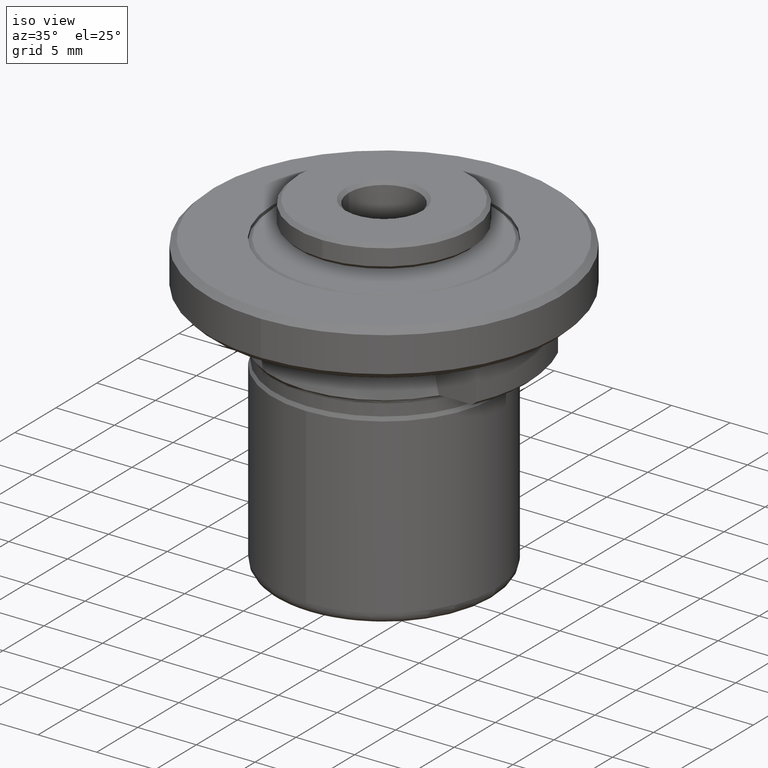
[diagram: clean part render]
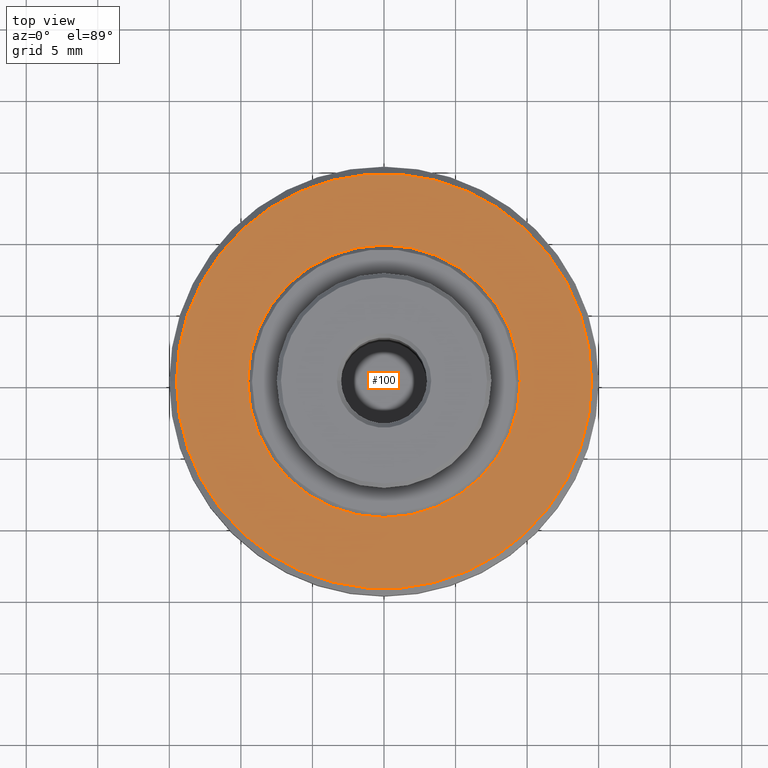
[diagram: tour spotlight — one face highlighted and labeled with its STEP entity id]
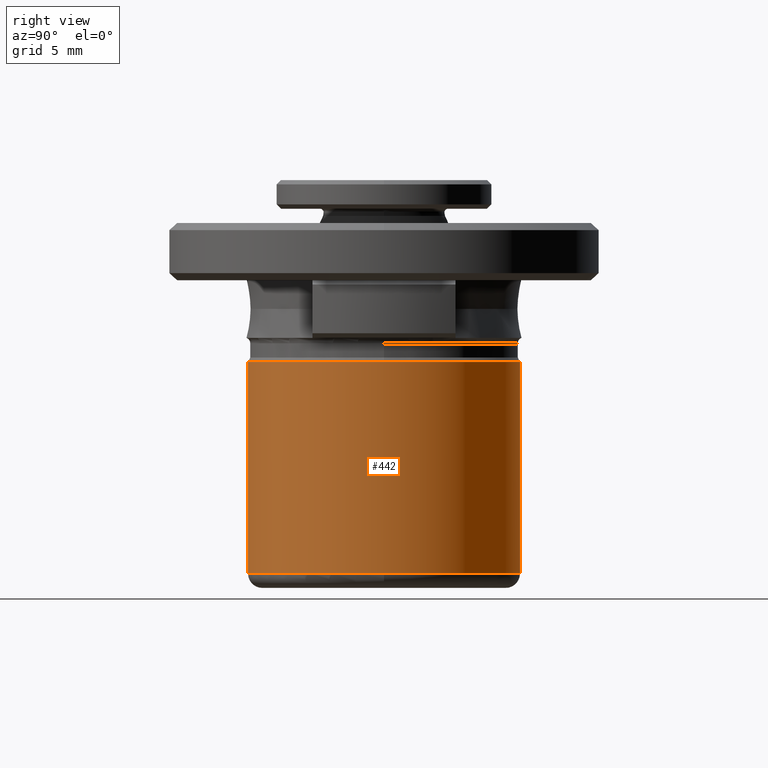
[diagram: tour spotlight — one face highlighted and labeled with its STEP entity id]
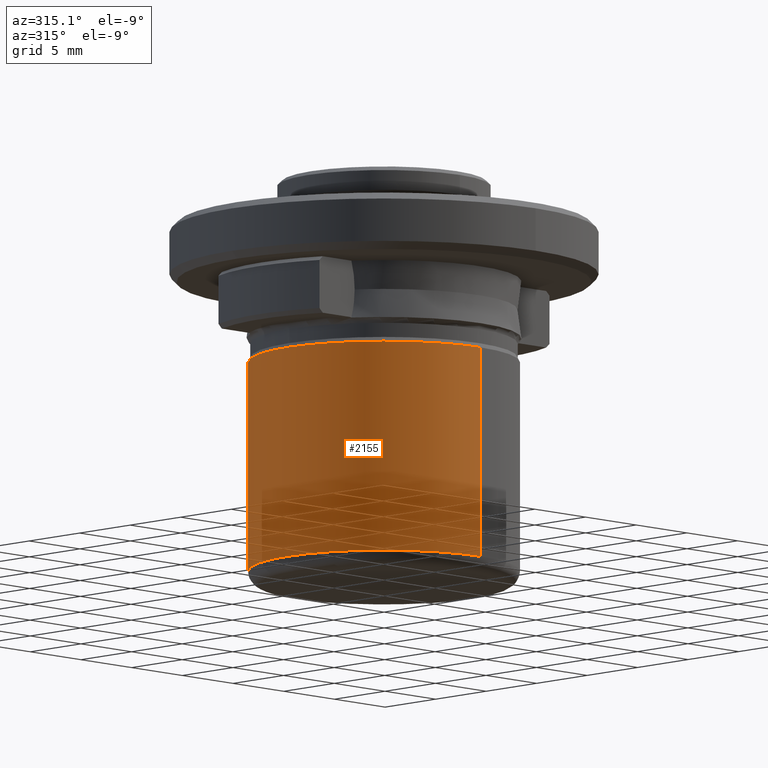
[diagram: tour spotlight — one face highlighted and labeled with its STEP entity id]
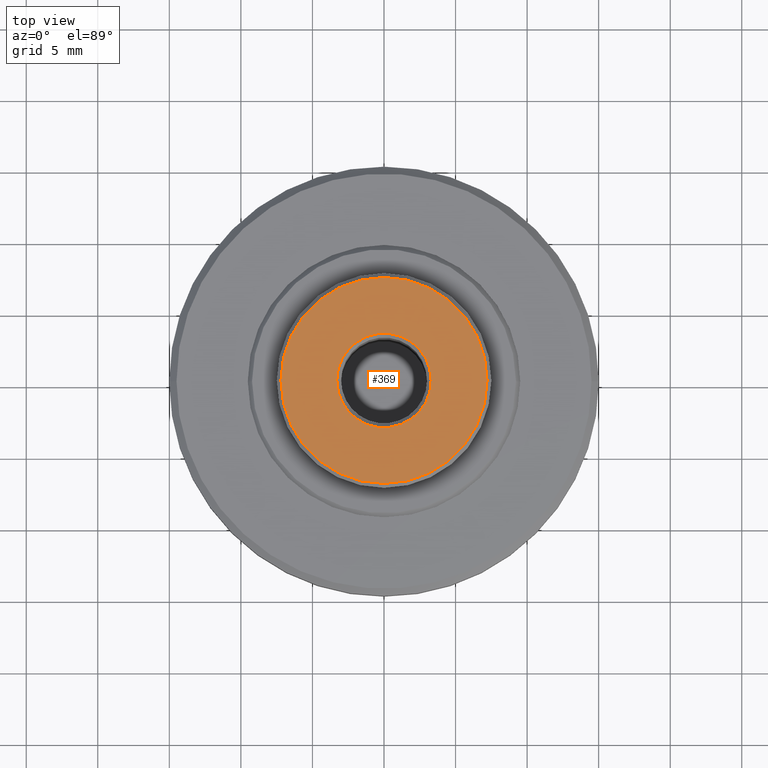
[diagram: tour spotlight — one face highlighted and labeled with its STEP entity id]
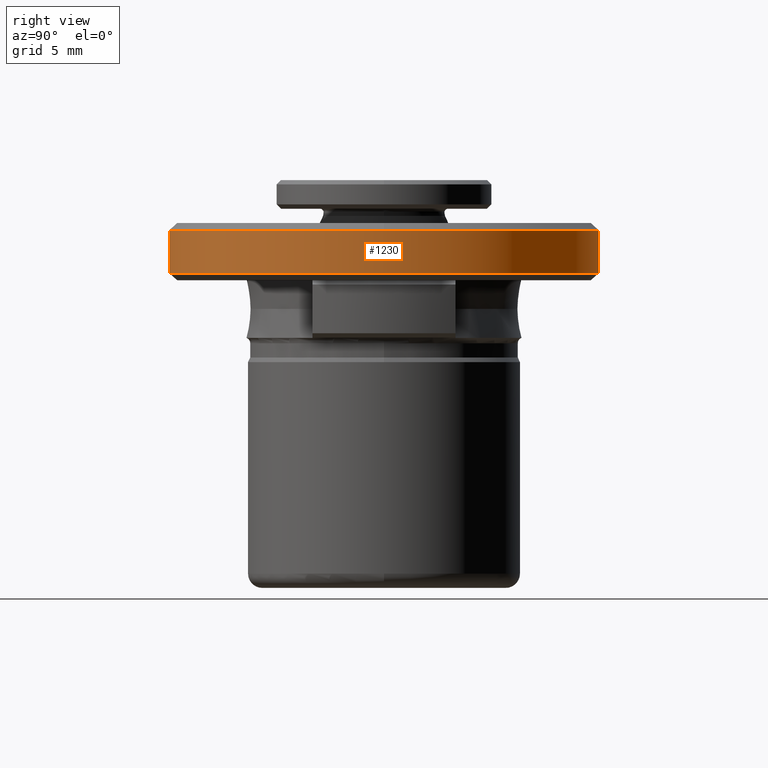
[diagram: tour spotlight — one face highlighted and labeled with its STEP entity id]
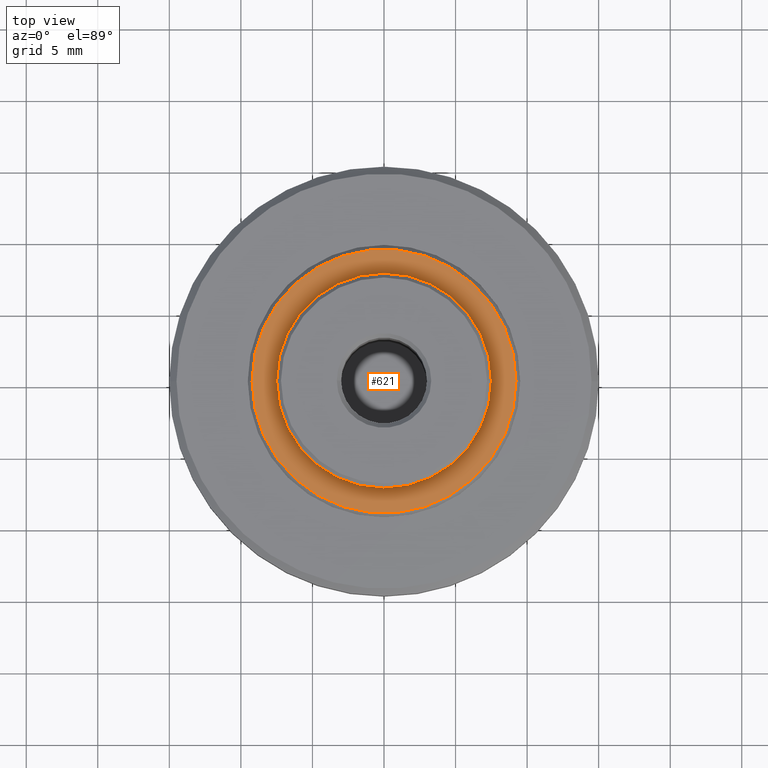
[diagram: tour spotlight — one face highlighted and labeled with its STEP entity id]
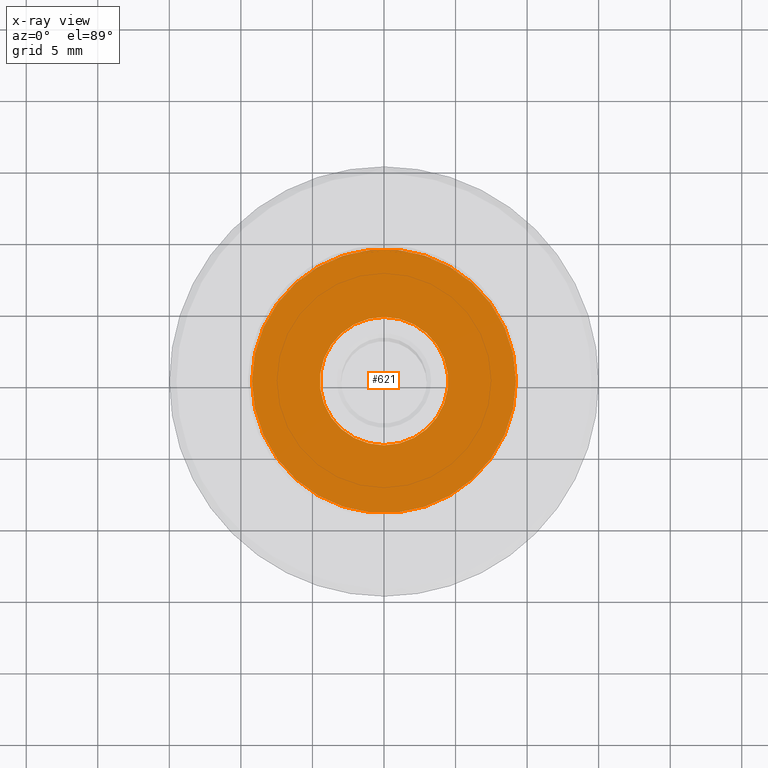
[diagram: x-ray of the same camera — body ghosted, this tour face saturated]
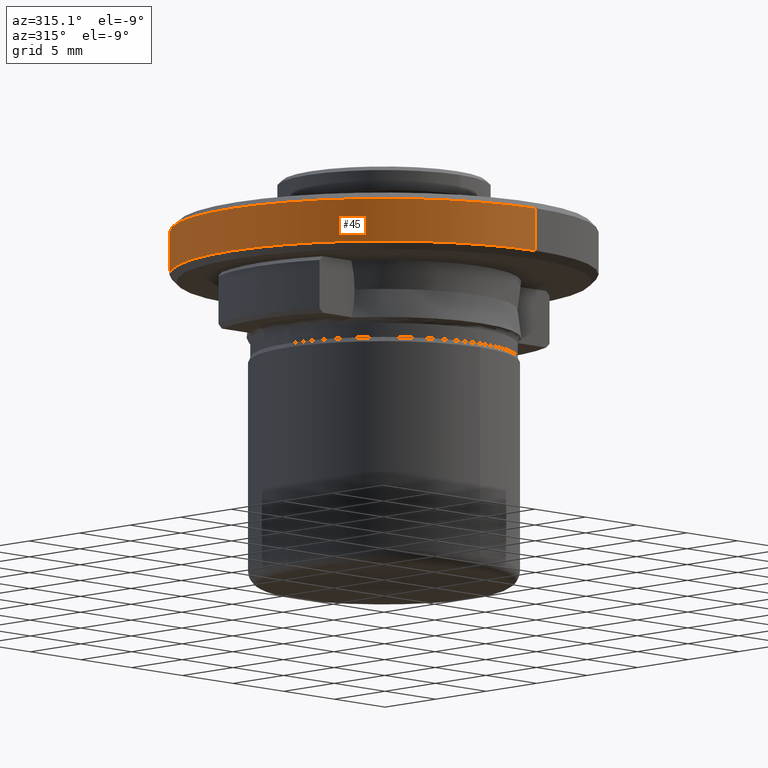
[diagram: tour spotlight — one face highlighted and labeled with its STEP entity id]
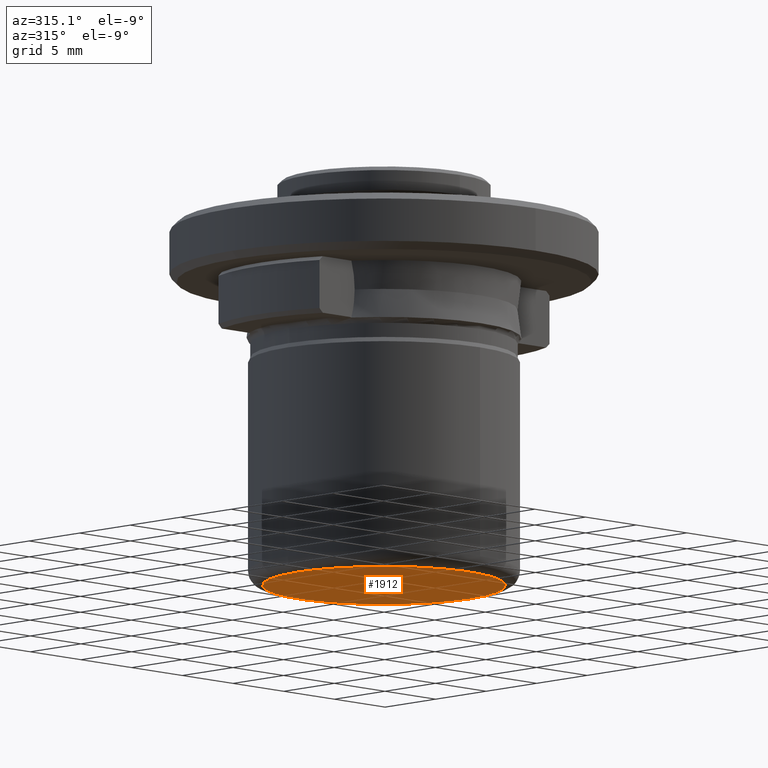
[diagram: tour spotlight — one face highlighted and labeled with its STEP entity id]
A machine part: a face-by-face anatomy tour. The part has 61 B-rep faces; the first image is the clean iso view, then the 8 largest visible faces are spotlighted one at a time (largest first), each with its STEP entity span.

Face 1 — top view, entity #100. In plain terms, the highlighted planar face has unit normal (0, 0, -1).
Definition (entity closure, byte-faithful):
#9 = VERTEX_POINT ( 'NONE', #1789 ) ;
#29 = CARTESIAN_POINT ( 'NONE',  ( 14.67399999999999900, -14.67399999999999900, 12.75000000000000200 ) ) ;
#60 = CIRCLE ( 'NONE', #265, 9.519999999999999600 ) ;
#100 = ADVANCED_FACE ( 'NONE', ( #2176, #884 ), #1372, .F. ) ;
#177 = VERTEX_POINT ( 'NONE', #1642 ) ;
#180 = CARTESIAN_POINT ( 'NONE',  ( 0.0000000000000000000, 0.0000000000000000000, 12.75000000000000200 ) ) ;
#197 = EDGE_CURVE ( 'NONE', #9, #1185, #657, .T. ) ;
#265 = AXIS2_PLACEMENT_3D ( 'NONE', #798, #1976, #965 ) ;
#312 = VERTEX_POINT ( 'NONE', #993 ) ;
#482 = DIRECTION ( 'NONE',  ( -0.0000000000000000000, -0.0000000000000000000, 1.000000000000000000 ) ) ;
#517 = CARTESIAN_POINT ( 'NONE',  ( 0.0000000000000000000, 0.0000000000000000000, 12.75000000000003900 ) ) ;
#626 = DIRECTION ( 'NONE',  ( -0.0000000000000000000, -0.0000000000000000000, 1.000000000000000000 ) ) ;
#657 = CIRCLE ( 'NONE', #1717, 9.519999999999999600 ) ;
#711 = DIRECTION ( 'NONE',  ( -1.000000000000000000, 0.0000000000000000000, 0.0000000000000000000 ) ) ;
#731 = DIRECTION ( 'NONE',  ( -1.000000000000000000, 0.0000000000000000000, 0.0000000000000000000 ) ) ;
#746 = DIRECTION ( 'NONE',  ( -1.000000000000000000, 0.0000000000000000000, 0.0000000000000000000 ) ) ;
#798 = CARTESIAN_POINT ( 'NONE',  ( 0.0000000000000000000, 0.0000000000000000000, 12.75000000000000200 ) ) ;
#884 = FACE_OUTER_BOUND ( 'NONE', #1469, .T. ) ;
#929 = AXIS2_PLACEMENT_3D ( 'NONE', #29, #1759, #746 ) ;
#965 = DIRECTION ( 'NONE',  ( -1.000000000000000000, 0.0000000000000000000, 0.0000000000000000000 ) ) ;
#993 = CARTESIAN_POINT ( 'NONE',  ( -14.49999999999996300, 0.0000000000000000000, 12.75000000000003900 ) ) ;
#1068 = CIRCLE ( 'NONE', #2168, 14.49999999999996300 ) ;
#1093 = AXIS2_PLACEMENT_3D ( 'NONE', #517, #1725, #711 ) ;
#1150 = CIRCLE ( 'NONE', #1093, 14.49999999999996300 ) ;
#1185 = VERTEX_POINT ( 'NONE', #1615 ) ;
#1187 = EDGE_CURVE ( 'NONE', #1185, #9, #60, .T. ) ;
#1218 = ORIENTED_EDGE ( 'NONE', *, *, #197, .F. ) ;
#1232 = ORIENTED_EDGE ( 'NONE', *, *, #1187, .F. ) ;
#1372 = PLANE ( 'NONE',  #929 ) ;
#1469 = EDGE_LOOP ( 'NONE', ( #2028, #2029 ) ) ;
#1523 = CARTESIAN_POINT ( 'NONE',  ( 0.0000000000000000000, 0.0000000000000000000, 12.75000000000003900 ) ) ;
#1615 = CARTESIAN_POINT ( 'NONE',  ( 9.519999999999999600, 1.165863752788280200E-015, 12.75000000000000200 ) ) ;
#1642 = CARTESIAN_POINT ( 'NONE',  ( 14.49999999999996300, 1.806354028742343400E-015, 12.75000000000003900 ) ) ;
#1691 = DIRECTION ( 'NONE',  ( -1.000000000000000000, 0.0000000000000000000, 0.0000000000000000000 ) ) ;
#1717 = AXIS2_PLACEMENT_3D ( 'NONE', #180, #626, #731 ) ;
#1725 = DIRECTION ( 'NONE',  ( -0.0000000000000000000, -0.0000000000000000000, 1.000000000000000000 ) ) ;
#1746 = EDGE_CURVE ( 'NONE', #312, #177, #1150, .T. ) ;
#1759 = DIRECTION ( 'NONE',  ( 0.0000000000000000000, 0.0000000000000000000, -1.000000000000000000 ) ) ;
#1789 = CARTESIAN_POINT ( 'NONE',  ( -9.519999999999999600, 0.0000000000000000000, 12.75000000000000200 ) ) ;
#1951 = EDGE_LOOP ( 'NONE', ( #1218, #1232 ) ) ;
#1976 = DIRECTION ( 'NONE',  ( -0.0000000000000000000, -0.0000000000000000000, 1.000000000000000000 ) ) ;
#2028 = ORIENTED_EDGE ( 'NONE', *, *, #1746, .T. ) ;
#2029 = ORIENTED_EDGE ( 'NONE', *, *, #2142, .T. ) ;
#2142 = EDGE_CURVE ( 'NONE', #177, #312, #1068, .T. ) ;
#2168 = AXIS2_PLACEMENT_3D ( 'NONE', #1523, #482, #1691 ) ;
#2176 = FACE_BOUND ( 'NONE', #1951, .T. ) ;

Face 2 — right view, entity #442. In plain terms, the highlighted cylindrical surface (partial cylindrical patch) has radius 9.5 mm, axis along (0, -0, 1).
Definition (entity closure, byte-faithful):
#6 = CARTESIAN_POINT ( 'NONE',  ( 0.0000000000000000000, -9.500000000000000000, -11.75000000000000000 ) ) ;
#53 = CARTESIAN_POINT ( 'NONE',  ( 0.0000000000000000000, 2.364620801796248300E-016, -11.75000000000000000 ) ) ;
#64 = AXIS2_PLACEMENT_3D ( 'NONE', #855, #2087, #2052 ) ;
#108 = CARTESIAN_POINT ( 'NONE',  ( 1.163414459189985500E-015, 9.500000000000000000, 3.030000000000088200 ) ) ;
#118 = CARTESIAN_POINT ( 'NONE',  ( 0.0000000000000000000, -9.500000000000000000, -6.570177872000000400 ) ) ;
#136 = AXIS2_PLACEMENT_3D ( 'NONE', #577, #1849, #797 ) ;
#148 = VERTEX_POINT ( 'NONE', #586 ) ;
#167 = VERTEX_POINT ( 'NONE', #1067 ) ;
#187 = EDGE_CURVE ( 'NONE', #1744, #148, #2125, .T. ) ;
#215 = DIRECTION ( 'NONE',  ( 1.000000000000000000, 0.0000000000000000000, 0.0000000000000000000 ) ) ;
#216 = AXIS2_PLACEMENT_3D ( 'NONE', #53, #1261, #215 ) ;
#253 = VERTEX_POINT ( 'NONE', #108 ) ;
#262 = EDGE_CURVE ( 'NONE', #253, #167, #1623, .T. ) ;
#273 = VERTEX_POINT ( 'NONE', #1813 ) ;
#339 = VECTOR ( 'NONE', #2208, 1000.000000000000000 ) ;
#368 = CYLINDRICAL_SURFACE ( 'NONE', #136, 9.500000000000000000 ) ;
#442 = ADVANCED_FACE ( 'NONE', ( #2149 ), #368, .T. ) ;
#489 = CARTESIAN_POINT ( 'NONE',  ( 1.163414459189985500E-015, 9.500000000000000000, -6.570177872000000400 ) ) ;
#508 = CIRCLE ( 'NONE', #1017, 9.500000000000000000 ) ;
#534 = EDGE_CURVE ( 'NONE', #167, #148, #1194, .T. ) ;
#577 = CARTESIAN_POINT ( 'NONE',  ( 0.0000000000000000000, 0.0000000000000000000, -6.570177872000000400 ) ) ;
#586 = CARTESIAN_POINT ( 'NONE',  ( 0.0000000000000000000, -9.500000000000000000, 3.030000000000088200 ) ) ;
#587 = ORIENTED_EDGE ( 'NONE', *, *, #262, .T. ) ;
#597 = AXIS2_PLACEMENT_3D ( 'NONE', #1801, #786, #1968 ) ;
#608 = ORIENTED_EDGE ( 'NONE', *, *, #1014, .T. ) ;
#609 = ORIENTED_EDGE ( 'NONE', *, *, #1889, .T. ) ;
#622 = ORIENTED_EDGE ( 'NONE', *, *, #784, .T. ) ;
#628 = ORIENTED_EDGE ( 'NONE', *, *, #534, .T. ) ;
#679 = CARTESIAN_POINT ( 'NONE',  ( 1.163414459189985500E-015, 9.500000000000000000, -11.75000000000000000 ) ) ;
#724 = VECTOR ( 'NONE', #1737, 1000.000000000000000 ) ;
#784 = EDGE_CURVE ( 'NONE', #1442, #253, #1711, .T. ) ;
#786 = DIRECTION ( 'NONE',  ( 0.0000000000000000000, 0.0000000000000000000, -1.000000000000000000 ) ) ;
#797 = DIRECTION ( 'NONE',  ( 0.0000000000000000000, -1.000000000000000000, 0.0000000000000000000 ) ) ;
#855 = CARTESIAN_POINT ( 'NONE',  ( 0.0000000000000000000, 0.0000000000000000000, 3.030000000000088200 ) ) ;
#943 = CARTESIAN_POINT ( 'NONE',  ( 0.0000000000000000000, 2.364620801796248300E-016, -11.75000000000000000 ) ) ;
#1014 = EDGE_CURVE ( 'NONE', #1744, #273, #508, .T. ) ;
#1017 = AXIS2_PLACEMENT_3D ( 'NONE', #943, #2119, #1117 ) ;
#1023 = ORIENTED_EDGE ( 'NONE', *, *, #187, .F. ) ;
#1067 = CARTESIAN_POINT ( 'NONE',  ( 9.499999999999957400, 1.163414459189980600E-015, 3.030000000000088200 ) ) ;
#1117 = DIRECTION ( 'NONE',  ( 1.000000000000000000, 0.0000000000000000000, 0.0000000000000000000 ) ) ;
#1194 = CIRCLE ( 'NONE', #597, 9.500000000000000000 ) ;
#1261 = DIRECTION ( 'NONE',  ( 0.0000000000000000000, 0.0000000000000000000, 1.000000000000000000 ) ) ;
#1377 = CIRCLE ( 'NONE', #216, 9.500000000000000000 ) ;
#1442 = VERTEX_POINT ( 'NONE', #679 ) ;
#1623 = CIRCLE ( 'NONE', #64, 9.500000000000000000 ) ;
#1711 = LINE ( 'NONE', #489, #339 ) ;
#1737 = DIRECTION ( 'NONE',  ( 0.0000000000000000000, -4.565061778886334800E-017, 1.000000000000000000 ) ) ;
#1744 = VERTEX_POINT ( 'NONE', #6 ) ;
#1801 = CARTESIAN_POINT ( 'NONE',  ( 0.0000000000000000000, 0.0000000000000000000, 3.030000000000088200 ) ) ;
#1813 = CARTESIAN_POINT ( 'NONE',  ( 9.500000000000001800, 2.364620801796248300E-016, -11.75000000000000000 ) ) ;
#1849 = DIRECTION ( 'NONE',  ( 0.0000000000000000000, -4.565061778886334800E-017, 1.000000000000000000 ) ) ;
#1889 = EDGE_CURVE ( 'NONE', #273, #1442, #1377, .T. ) ;
#1941 = EDGE_LOOP ( 'NONE', ( #608, #609, #622, #587, #628, #1023 ) ) ;
#1968 = DIRECTION ( 'NONE',  ( -1.000000000000000000, 0.0000000000000000000, -9.312726028928122700E-015 ) ) ;
#2052 = DIRECTION ( 'NONE',  ( -1.000000000000000000, 0.0000000000000000000, -9.312726028928122700E-015 ) ) ;
#2087 = DIRECTION ( 'NONE',  ( 0.0000000000000000000, 0.0000000000000000000, -1.000000000000000000 ) ) ;
#2119 = DIRECTION ( 'NONE',  ( 0.0000000000000000000, 0.0000000000000000000, 1.000000000000000000 ) ) ;
#2125 = LINE ( 'NONE', #118, #724 ) ;
#2149 = FACE_OUTER_BOUND ( 'NONE', #1941, .T. ) ;
#2208 = DIRECTION ( 'NONE',  ( 0.0000000000000000000, -4.565061778886334800E-017, 1.000000000000000000 ) ) ;

Face 3 — auxiliary view, entity #2155. In plain terms, the highlighted cylindrical surface (partial cylindrical patch) has radius 9.5 mm, axis along (0, -0, 1).
Definition (entity closure, byte-faithful):
#4 = CARTESIAN_POINT ( 'NONE',  ( 0.0000000000000000000, 2.364620801796248300E-016, -11.75000000000000000 ) ) ;
#6 = CARTESIAN_POINT ( 'NONE',  ( 0.0000000000000000000, -9.500000000000000000, -11.75000000000000000 ) ) ;
#108 = CARTESIAN_POINT ( 'NONE',  ( 1.163414459189985500E-015, 9.500000000000000000, 3.030000000000088200 ) ) ;
#118 = CARTESIAN_POINT ( 'NONE',  ( 0.0000000000000000000, -9.500000000000000000, -6.570177872000000400 ) ) ;
#148 = VERTEX_POINT ( 'NONE', #586 ) ;
#173 = DIRECTION ( 'NONE',  ( 1.000000000000000000, 0.0000000000000000000, 0.0000000000000000000 ) ) ;
#187 = EDGE_CURVE ( 'NONE', #1744, #148, #2125, .T. ) ;
#253 = VERTEX_POINT ( 'NONE', #108 ) ;
#339 = VECTOR ( 'NONE', #2208, 1000.000000000000000 ) ;
#377 = CIRCLE ( 'NONE', #694, 9.500000000000000000 ) ;
#403 = AXIS2_PLACEMENT_3D ( 'NONE', #668, #1863, #1855 ) ;
#468 = VERTEX_POINT ( 'NONE', #1953 ) ;
#489 = CARTESIAN_POINT ( 'NONE',  ( 1.163414459189985500E-015, 9.500000000000000000, -6.570177872000000400 ) ) ;
#532 = CYLINDRICAL_SURFACE ( 'NONE', #403, 9.500000000000000000 ) ;
#586 = CARTESIAN_POINT ( 'NONE',  ( 0.0000000000000000000, -9.500000000000000000, 3.030000000000088200 ) ) ;
#645 = AXIS2_PLACEMENT_3D ( 'NONE', #1890, #876, #2059 ) ;
#648 = CIRCLE ( 'NONE', #1719, 9.500000000000000000 ) ;
#651 = CARTESIAN_POINT ( 'NONE',  ( 0.0000000000000000000, 0.0000000000000000000, 3.030000000000088200 ) ) ;
#668 = CARTESIAN_POINT ( 'NONE',  ( 0.0000000000000000000, 0.0000000000000000000, -6.570177872000000400 ) ) ;
#679 = CARTESIAN_POINT ( 'NONE',  ( 1.163414459189985500E-015, 9.500000000000000000, -11.75000000000000000 ) ) ;
#691 = AXIS2_PLACEMENT_3D ( 'NONE', #1779, #764, #1945 ) ;
#694 = AXIS2_PLACEMENT_3D ( 'NONE', #4, #1221, #173 ) ;
#705 = ORIENTED_EDGE ( 'NONE', *, *, #1736, .T. ) ;
#724 = VECTOR ( 'NONE', #1737, 1000.000000000000000 ) ;
#747 = CIRCLE ( 'NONE', #645, 9.500000000000000000 ) ;
#764 = DIRECTION ( 'NONE',  ( 0.0000000000000000000, 0.0000000000000000000, -1.000000000000000000 ) ) ;
#784 = EDGE_CURVE ( 'NONE', #1442, #253, #1711, .T. ) ;
#836 = DIRECTION ( 'NONE',  ( -1.000000000000000000, 0.0000000000000000000, -9.312726028928122700E-015 ) ) ;
#876 = DIRECTION ( 'NONE',  ( 0.0000000000000000000, 0.0000000000000000000, 1.000000000000000000 ) ) ;
#947 = VERTEX_POINT ( 'NONE', #1071 ) ;
#1071 = CARTESIAN_POINT ( 'NONE',  ( -9.500000000000001800, 1.399876539369610000E-015, -11.75000000000000000 ) ) ;
#1102 = EDGE_LOOP ( 'NONE', ( #1152, #705, #1143, #1520, #1763, #1263 ) ) ;
#1124 = FACE_OUTER_BOUND ( 'NONE', #1102, .T. ) ;
#1143 = ORIENTED_EDGE ( 'NONE', *, *, #1516, .T. ) ;
#1152 = ORIENTED_EDGE ( 'NONE', *, *, #784, .F. ) ;
#1221 = DIRECTION ( 'NONE',  ( 0.0000000000000000000, 0.0000000000000000000, 1.000000000000000000 ) ) ;
#1263 = ORIENTED_EDGE ( 'NONE', *, *, #1918, .T. ) ;
#1442 = VERTEX_POINT ( 'NONE', #679 ) ;
#1516 = EDGE_CURVE ( 'NONE', #947, #1744, #377, .T. ) ;
#1520 = ORIENTED_EDGE ( 'NONE', *, *, #187, .T. ) ;
#1711 = LINE ( 'NONE', #489, #339 ) ;
#1719 = AXIS2_PLACEMENT_3D ( 'NONE', #651, #1848, #836 ) ;
#1736 = EDGE_CURVE ( 'NONE', #1442, #947, #747, .T. ) ;
#1737 = DIRECTION ( 'NONE',  ( 0.0000000000000000000, -4.565061778886334800E-017, 1.000000000000000000 ) ) ;
#1744 = VERTEX_POINT ( 'NONE', #6 ) ;
#1763 = ORIENTED_EDGE ( 'NONE', *, *, #2083, .T. ) ;
#1779 = CARTESIAN_POINT ( 'NONE',  ( 0.0000000000000000000, 0.0000000000000000000, 3.030000000000088200 ) ) ;
#1780 = CIRCLE ( 'NONE', #691, 9.500000000000000000 ) ;
#1848 = DIRECTION ( 'NONE',  ( 0.0000000000000000000, 0.0000000000000000000, -1.000000000000000000 ) ) ;
#1855 = DIRECTION ( 'NONE',  ( 0.0000000000000000000, -1.000000000000000000, 0.0000000000000000000 ) ) ;
#1863 = DIRECTION ( 'NONE',  ( 0.0000000000000000000, -4.565061778886334800E-017, 1.000000000000000000 ) ) ;
#1890 = CARTESIAN_POINT ( 'NONE',  ( 0.0000000000000000000, 2.364620801796248300E-016, -11.75000000000000000 ) ) ;
#1918 = EDGE_CURVE ( 'NONE', #468, #253, #1780, .T. ) ;
#1945 = DIRECTION ( 'NONE',  ( -1.000000000000000000, 0.0000000000000000000, -9.312726028928122700E-015 ) ) ;
#1953 = CARTESIAN_POINT ( 'NONE',  ( -9.499999999999957400, 0.0000000000000000000, 3.030000000000088200 ) ) ;
#2059 = DIRECTION ( 'NONE',  ( 1.000000000000000000, 0.0000000000000000000, 0.0000000000000000000 ) ) ;
#2083 = EDGE_CURVE ( 'NONE', #148, #468, #648, .T. ) ;
#2125 = LINE ( 'NONE', #118, #724 ) ;
#2155 = ADVANCED_FACE ( 'NONE', ( #1124 ), #532, .T. ) ;
#2208 = DIRECTION ( 'NONE',  ( 0.0000000000000000000, -4.565061778886334800E-017, 1.000000000000000000 ) ) ;

Face 4 — top view, entity #369. In plain terms, the highlighted planar face has unit normal (0, 0, -1).
Definition (entity closure, byte-faithful):
#88 = FACE_BOUND ( 'NONE', #879, .T. ) ;
#103 = DIRECTION ( 'NONE',  ( 0.0000000000000000000, 0.0000000000000000000, -1.000000000000000000 ) ) ;
#154 = CIRCLE ( 'NONE', #1403, 3.299999999999997200 ) ;
#168 = ORIENTED_EDGE ( 'NONE', *, *, #375, .T. ) ;
#247 = AXIS2_PLACEMENT_3D ( 'NONE', #1291, #249, #1458 ) ;
#249 = DIRECTION ( 'NONE',  ( 0.0000000000000000000, 0.0000000000000000000, -1.000000000000000000 ) ) ;
#281 = PLANE ( 'NONE',  #1451 ) ;
#314 = CIRCLE ( 'NONE', #247, 3.299999999999997200 ) ;
#356 = CARTESIAN_POINT ( 'NONE',  ( 7.286400000000000400, -7.286400000000000400, 15.75000000000000000 ) ) ;
#369 = ADVANCED_FACE ( 'NONE', ( #88, #2202 ), #281, .F. ) ;
#375 = EDGE_CURVE ( 'NONE', #1799, #1631, #1357, .T. ) ;
#432 = DIRECTION ( 'NONE',  ( -1.000000000000000000, 0.0000000000000000000, 0.0000000000000000000 ) ) ;
#458 = AXIS2_PLACEMENT_3D ( 'NONE', #860, #2037, #1035 ) ;
#499 = EDGE_CURVE ( 'NONE', #634, #759, #314, .T. ) ;
#607 = EDGE_CURVE ( 'NONE', #759, #634, #154, .T. ) ;
#634 = VERTEX_POINT ( 'NONE', #988 ) ;
#701 = DIRECTION ( 'NONE',  ( 0.0000000000000000000, 0.0000000000000000000, -1.000000000000000000 ) ) ;
#754 = EDGE_CURVE ( 'NONE', #1631, #1799, #1318, .T. ) ;
#759 = VERTEX_POINT ( 'NONE', #1528 ) ;
#860 = CARTESIAN_POINT ( 'NONE',  ( 0.0000000000000000000, 0.0000000000000000000, 15.75000000000000000 ) ) ;
#879 = EDGE_LOOP ( 'NONE', ( #922, #1829 ) ) ;
#892 = ORIENTED_EDGE ( 'NONE', *, *, #754, .T. ) ;
#922 = ORIENTED_EDGE ( 'NONE', *, *, #607, .T. ) ;
#976 = EDGE_LOOP ( 'NONE', ( #892, #168 ) ) ;
#988 = CARTESIAN_POINT ( 'NONE',  ( -3.299999999999997200, 4.041334437186261600E-016, 15.75000000000000000 ) ) ;
#1035 = DIRECTION ( 'NONE',  ( -1.000000000000000000, 0.0000000000000000000, 0.0000000000000000000 ) ) ;
#1066 = CARTESIAN_POINT ( 'NONE',  ( 7.200000000000000200, 9.001153973733045600E-016, 15.75000000000000000 ) ) ;
#1153 = CARTESIAN_POINT ( 'NONE',  ( 0.0000000000000000000, 0.0000000000000000000, 15.75000000000000000 ) ) ;
#1184 = DIRECTION ( 'NONE',  ( -0.0000000000000000000, -0.0000000000000000000, 1.000000000000000000 ) ) ;
#1245 = CARTESIAN_POINT ( 'NONE',  ( 0.0000000000000000000, 0.0000000000000000000, 15.75000000000000000 ) ) ;
#1291 = CARTESIAN_POINT ( 'NONE',  ( 0.0000000000000000000, 0.0000000000000000000, 15.75000000000000000 ) ) ;
#1318 = CIRCLE ( 'NONE', #458, 7.200000000000000200 ) ;
#1321 = DIRECTION ( 'NONE',  ( -1.000000000000000000, 0.0000000000000000000, 0.0000000000000000000 ) ) ;
#1336 = AXIS2_PLACEMENT_3D ( 'NONE', #1245, #1184, #432 ) ;
#1357 = CIRCLE ( 'NONE', #1336, 7.200000000000000200 ) ;
#1403 = AXIS2_PLACEMENT_3D ( 'NONE', #1153, #103, #1321 ) ;
#1451 = AXIS2_PLACEMENT_3D ( 'NONE', #356, #701, #2094 ) ;
#1458 = DIRECTION ( 'NONE',  ( -1.000000000000000000, 0.0000000000000000000, 0.0000000000000000000 ) ) ;
#1528 = CARTESIAN_POINT ( 'NONE',  ( 3.299999999999997200, 0.0000000000000000000, 15.75000000000000000 ) ) ;
#1631 = VERTEX_POINT ( 'NONE', #2183 ) ;
#1799 = VERTEX_POINT ( 'NONE', #1066 ) ;
#1829 = ORIENTED_EDGE ( 'NONE', *, *, #499, .T. ) ;
#2037 = DIRECTION ( 'NONE',  ( -0.0000000000000000000, -0.0000000000000000000, 1.000000000000000000 ) ) ;
#2094 = DIRECTION ( 'NONE',  ( -1.000000000000000000, 0.0000000000000000000, 0.0000000000000000000 ) ) ;
#2183 = CARTESIAN_POINT ( 'NONE',  ( -7.200000000000000200, 0.0000000000000000000, 15.75000000000000000 ) ) ;
#2202 = FACE_OUTER_BOUND ( 'NONE', #976, .T. ) ;

Face 5 — right view, entity #1230. In plain terms, the highlighted cylindrical surface (partial cylindrical patch) has radius 15 mm, axis along (0, -0, -1).
Definition (entity closure, byte-faithful):
#18 = ORIENTED_EDGE ( 'NONE', *, *, #305, .F. ) ;
#122 = CARTESIAN_POINT ( 'NONE',  ( 0.0000000000000000000, 15.00000000000000000, 12.24999999999999800 ) ) ;
#134 = CARTESIAN_POINT ( 'NONE',  ( 0.0000000000000000000, 15.00000000000000000, 9.249999999999980500 ) ) ;
#149 = DIRECTION ( 'NONE',  ( -1.000000000000000000, 0.0000000000000000000, 0.0000000000000000000 ) ) ;
#162 = CARTESIAN_POINT ( 'NONE',  ( 0.0000000000000000000, 0.0000000000000000000, 9.249999999999980500 ) ) ;
#163 = VECTOR ( 'NONE', #529, 1000.000000000000000 ) ;
#178 = AXIS2_PLACEMENT_3D ( 'NONE', #162, #1369, #332 ) ;
#236 = AXIS2_PLACEMENT_3D ( 'NONE', #2023, #1018, #2191 ) ;
#290 = AXIS2_PLACEMENT_3D ( 'NONE', #1692, #1375, #1315 ) ;
#305 = EDGE_CURVE ( 'NONE', #1087, #814, #1078, .T. ) ;
#332 = DIRECTION ( 'NONE',  ( 1.000000000000000000, 0.0000000000000000000, 1.272130549049658600E-015 ) ) ;
#381 = ORIENTED_EDGE ( 'NONE', *, *, #1647, .F. ) ;
#393 = CIRCLE ( 'NONE', #236, 15.00000000000000000 ) ;
#397 = CARTESIAN_POINT ( 'NONE',  ( 14.99999999999998000, 0.0000000000000000000, 9.249999999999980500 ) ) ;
#440 = LINE ( 'NONE', #122, #2215 ) ;
#529 = DIRECTION ( 'NONE',  ( 0.0000000000000000000, -5.782411586589358600E-017, -1.000000000000000000 ) ) ;
#692 = ORIENTED_EDGE ( 'NONE', *, *, #1766, .T. ) ;
#702 = EDGE_CURVE ( 'NONE', #814, #1600, #440, .T. ) ;
#745 = EDGE_CURVE ( 'NONE', #992, #1600, #393, .T. ) ;
#772 = FACE_OUTER_BOUND ( 'NONE', #2114, .T. ) ;
#782 = ORIENTED_EDGE ( 'NONE', *, *, #745, .T. ) ;
#785 = CARTESIAN_POINT ( 'NONE',  ( 15.00000000000000000, 1.836970198721029600E-015, 12.25000000000000000 ) ) ;
#804 = DIRECTION ( 'NONE',  ( 0.0000000000000000000, 1.000000000000000000, -1.156482317317871500E-016 ) ) ;
#814 = VERTEX_POINT ( 'NONE', #1550 ) ;
#859 = AXIS2_PLACEMENT_3D ( 'NONE', #1136, #1640, #804 ) ;
#926 = ORIENTED_EDGE ( 'NONE', *, *, #1687, .T. ) ;
#992 = VERTEX_POINT ( 'NONE', #397 ) ;
#1018 = DIRECTION ( 'NONE',  ( 0.0000000000000000000, 0.0000000000000000000, 1.000000000000000000 ) ) ;
#1078 = CIRCLE ( 'NONE', #290, 15.00000000000000000 ) ;
#1087 = VERTEX_POINT ( 'NONE', #785 ) ;
#1136 = CARTESIAN_POINT ( 'NONE',  ( 0.0000000000000000000, 0.0000000000000000000, 12.25000000000000000 ) ) ;
#1178 = CYLINDRICAL_SURFACE ( 'NONE', #859, 15.00000000000000000 ) ;
#1195 = DIRECTION ( 'NONE',  ( -0.0000000000000000000, -0.0000000000000000000, 1.000000000000000000 ) ) ;
#1230 = ADVANCED_FACE ( 'NONE', ( #772 ), #1178, .T. ) ;
#1274 = CARTESIAN_POINT ( 'NONE',  ( 1.836970198721029600E-015, -15.00000000000000000, 12.25000000000000000 ) ) ;
#1303 = CIRCLE ( 'NONE', #1948, 15.00000000000000000 ) ;
#1315 = DIRECTION ( 'NONE',  ( -1.000000000000000000, 0.0000000000000000000, 0.0000000000000000000 ) ) ;
#1369 = DIRECTION ( 'NONE',  ( 0.0000000000000000000, 0.0000000000000000000, 1.000000000000000000 ) ) ;
#1375 = DIRECTION ( 'NONE',  ( -0.0000000000000000000, -0.0000000000000000000, 1.000000000000000000 ) ) ;
#1498 = DIRECTION ( 'NONE',  ( 0.0000000000000000000, -5.782411586589358600E-017, -1.000000000000000000 ) ) ;
#1550 = CARTESIAN_POINT ( 'NONE',  ( 0.0000000000000000000, 15.00000000000000000, 12.25000000000000000 ) ) ;
#1600 = VERTEX_POINT ( 'NONE', #134 ) ;
#1640 = DIRECTION ( 'NONE',  ( 0.0000000000000000000, -5.782411586589358600E-017, -1.000000000000000000 ) ) ;
#1641 = CIRCLE ( 'NONE', #178, 15.00000000000000000 ) ;
#1647 = EDGE_CURVE ( 'NONE', #1971, #1087, #1303, .T. ) ;
#1687 = EDGE_CURVE ( 'NONE', #1735, #992, #1641, .T. ) ;
#1692 = CARTESIAN_POINT ( 'NONE',  ( 0.0000000000000000000, 0.0000000000000000000, 12.25000000000000000 ) ) ;
#1733 = CARTESIAN_POINT ( 'NONE',  ( 1.836970198721029600E-015, -15.00000000000000000, 12.25000000000000200 ) ) ;
#1735 = VERTEX_POINT ( 'NONE', #2043 ) ;
#1766 = EDGE_CURVE ( 'NONE', #1971, #1735, #1935, .T. ) ;
#1865 = ORIENTED_EDGE ( 'NONE', *, *, #702, .F. ) ;
#1935 = LINE ( 'NONE', #1733, #163 ) ;
#1948 = AXIS2_PLACEMENT_3D ( 'NONE', #2196, #1195, #149 ) ;
#1971 = VERTEX_POINT ( 'NONE', #1274 ) ;
#2023 = CARTESIAN_POINT ( 'NONE',  ( 0.0000000000000000000, 0.0000000000000000000, 9.249999999999980500 ) ) ;
#2043 = CARTESIAN_POINT ( 'NONE',  ( 1.836970198721029600E-015, -15.00000000000000000, 9.249999999999980500 ) ) ;
#2114 = EDGE_LOOP ( 'NONE', ( #381, #692, #926, #782, #1865, #18 ) ) ;
#2191 = DIRECTION ( 'NONE',  ( 1.000000000000000000, 0.0000000000000000000, 1.272130549049658600E-015 ) ) ;
#2196 = CARTESIAN_POINT ( 'NONE',  ( 0.0000000000000000000, 0.0000000000000000000, 12.25000000000000000 ) ) ;
#2215 = VECTOR ( 'NONE', #1498, 1000.000000000000000 ) ;

Face 6 — top view, entity #621. An x-ray twin of the same camera follows (body ghosted, this face saturated) — the face is partly hidden behind the body. In plain terms, the highlighted planar face has unit normal (0, 0, -1).
Definition (entity closure, byte-faithful):
#83 = CIRCLE ( 'NONE', #1650, 9.219999999999961600 ) ;
#96 = FACE_BOUND ( 'NONE', #604, .T. ) ;
#133 = DIRECTION ( 'NONE',  ( -0.0000000000000000000, -0.0000000000000000000, 1.000000000000000000 ) ) ;
#277 = PLANE ( 'NONE',  #2005 ) ;
#355 = DIRECTION ( 'NONE',  ( -0.0000000000000000000, 2.040851148208008200E-016, 1.000000000000000000 ) ) ;
#494 = VERTEX_POINT ( 'NONE', #951 ) ;
#604 = EDGE_LOOP ( 'NONE', ( #2123, #1191 ) ) ;
#613 = AXIS2_PLACEMENT_3D ( 'NONE', #817, #1999, #991 ) ;
#621 = ADVANCED_FACE ( 'NONE', ( #96, #1476 ), #277, .F. ) ;
#623 = DIRECTION ( 'NONE',  ( -1.000000000000000000, 0.0000000000000000000, 0.0000000000000000000 ) ) ;
#639 = VERTEX_POINT ( 'NONE', #1491 ) ;
#653 = CIRCLE ( 'NONE', #1313, 9.219999999999961600 ) ;
#738 = ORIENTED_EDGE ( 'NONE', *, *, #1295, .T. ) ;
#817 = CARTESIAN_POINT ( 'NONE',  ( 0.0000000000000000000, -1.020425574103923600E-016, 12.75000000000003900 ) ) ;
#821 = CARTESIAN_POINT ( 'NONE',  ( 0.0000000000000000000, 0.0000000000000000000, 12.75000000000003900 ) ) ;
#932 = CARTESIAN_POINT ( 'NONE',  ( 0.0000000000000000000, 4.483153828999981300, 12.75000000000003900 ) ) ;
#951 = CARTESIAN_POINT ( 'NONE',  ( -9.219999999999961600, 0.0000000000000000000, 12.75000000000003900 ) ) ;
#991 = DIRECTION ( 'NONE',  ( 0.0000000000000000000, 1.000000000000000000, -3.869426618278135400E-016 ) ) ;
#999 = DIRECTION ( 'NONE',  ( -1.000000000000000000, 0.0000000000000000000, 0.0000000000000000000 ) ) ;
#1111 = VERTEX_POINT ( 'NONE', #932 ) ;
#1127 = CIRCLE ( 'NONE', #613, 4.483153828999981300 ) ;
#1138 = VERTEX_POINT ( 'NONE', #1445 ) ;
#1179 = CARTESIAN_POINT ( 'NONE',  ( 0.0000000000000000000, 0.0000000000000000000, 12.75000000000003900 ) ) ;
#1191 = ORIENTED_EDGE ( 'NONE', *, *, #1255, .F. ) ;
#1255 = EDGE_CURVE ( 'NONE', #639, #1111, #1127, .T. ) ;
#1295 = EDGE_CURVE ( 'NONE', #494, #1138, #653, .T. ) ;
#1313 = AXIS2_PLACEMENT_3D ( 'NONE', #821, #2009, #999 ) ;
#1323 = EDGE_CURVE ( 'NONE', #1138, #494, #83, .T. ) ;
#1342 = DIRECTION ( 'NONE',  ( -1.000000000000000000, 0.0000000000000000000, 0.0000000000000000000 ) ) ;
#1390 = CARTESIAN_POINT ( 'NONE',  ( 0.0000000000000000000, -1.020425574103923600E-016, 12.75000000000003900 ) ) ;
#1418 = AXIS2_PLACEMENT_3D ( 'NONE', #1390, #355, #1559 ) ;
#1445 = CARTESIAN_POINT ( 'NONE',  ( 9.219999999999961600, 1.147494050801067600E-015, 12.75000000000003900 ) ) ;
#1476 = FACE_OUTER_BOUND ( 'NONE', #1792, .T. ) ;
#1482 = CARTESIAN_POINT ( 'NONE',  ( 9.330640000000000700, -9.330640000000000700, 12.75000000000000200 ) ) ;
#1491 = CARTESIAN_POINT ( 'NONE',  ( 5.490279986770028900E-016, -4.483153828999982200, 12.75000000000004100 ) ) ;
#1536 = CIRCLE ( 'NONE', #1418, 4.483153828999981300 ) ;
#1559 = DIRECTION ( 'NONE',  ( 0.0000000000000000000, 1.000000000000000000, -3.869426618278135400E-016 ) ) ;
#1650 = AXIS2_PLACEMENT_3D ( 'NONE', #1179, #133, #1342 ) ;
#1653 = DIRECTION ( 'NONE',  ( 0.0000000000000000000, 0.0000000000000000000, -1.000000000000000000 ) ) ;
#1756 = EDGE_CURVE ( 'NONE', #1111, #639, #1536, .T. ) ;
#1792 = EDGE_LOOP ( 'NONE', ( #738, #2045 ) ) ;
#1999 = DIRECTION ( 'NONE',  ( -0.0000000000000000000, 2.040851148208008200E-016, 1.000000000000000000 ) ) ;
#2005 = AXIS2_PLACEMENT_3D ( 'NONE', #1482, #1653, #623 ) ;
#2009 = DIRECTION ( 'NONE',  ( -0.0000000000000000000, -0.0000000000000000000, 1.000000000000000000 ) ) ;
#2045 = ORIENTED_EDGE ( 'NONE', *, *, #1323, .T. ) ;
#2123 = ORIENTED_EDGE ( 'NONE', *, *, #1756, .F. ) ;

Face 7 — auxiliary view, entity #45. In plain terms, the highlighted cylindrical surface (partial cylindrical patch) has radius 15 mm, axis along (0, -0, -1).
Definition (entity closure, byte-faithful):
#45 = ADVANCED_FACE ( 'NONE', ( #65 ), #1786, .T. ) ;
#65 = FACE_OUTER_BOUND ( 'NONE', #1180, .T. ) ;
#99 = DIRECTION ( 'NONE',  ( 0.0000000000000000000, 1.000000000000000000, -1.156482317317871500E-016 ) ) ;
#122 = CARTESIAN_POINT ( 'NONE',  ( 0.0000000000000000000, 15.00000000000000000, 12.24999999999999800 ) ) ;
#134 = CARTESIAN_POINT ( 'NONE',  ( 0.0000000000000000000, 15.00000000000000000, 9.249999999999980500 ) ) ;
#163 = VECTOR ( 'NONE', #529, 1000.000000000000000 ) ;
#307 = ORIENTED_EDGE ( 'NONE', *, *, #1803, .F. ) ;
#352 = CIRCLE ( 'NONE', #1921, 15.00000000000000000 ) ;
#420 = EDGE_CURVE ( 'NONE', #1600, #1727, #912, .T. ) ;
#440 = LINE ( 'NONE', #122, #2215 ) ;
#500 = CARTESIAN_POINT ( 'NONE',  ( -14.99999999999998000, 1.836970198721027200E-015, 9.249999999999980500 ) ) ;
#529 = DIRECTION ( 'NONE',  ( 0.0000000000000000000, -5.782411586589358600E-017, -1.000000000000000000 ) ) ;
#689 = AXIS2_PLACEMENT_3D ( 'NONE', #1172, #810, #99 ) ;
#702 = EDGE_CURVE ( 'NONE', #814, #1600, #440, .T. ) ;
#789 = DIRECTION ( 'NONE',  ( 0.0000000000000000000, 0.0000000000000000000, 1.000000000000000000 ) ) ;
#810 = DIRECTION ( 'NONE',  ( 0.0000000000000000000, -5.782411586589358600E-017, -1.000000000000000000 ) ) ;
#814 = VERTEX_POINT ( 'NONE', #1550 ) ;
#853 = DIRECTION ( 'NONE',  ( -0.0000000000000000000, -0.0000000000000000000, 1.000000000000000000 ) ) ;
#898 = DIRECTION ( 'NONE',  ( -0.0000000000000000000, -0.0000000000000000000, 1.000000000000000000 ) ) ;
#912 = CIRCLE ( 'NONE', #1795, 15.00000000000000000 ) ;
#1053 = ORIENTED_EDGE ( 'NONE', *, *, #1658, .F. ) ;
#1074 = DIRECTION ( 'NONE',  ( 0.0000000000000000000, 0.0000000000000000000, 1.000000000000000000 ) ) ;
#1095 = VERTEX_POINT ( 'NONE', #1457 ) ;
#1100 = CIRCLE ( 'NONE', #1875, 15.00000000000000000 ) ;
#1166 = EDGE_CURVE ( 'NONE', #1727, #1735, #352, .T. ) ;
#1172 = CARTESIAN_POINT ( 'NONE',  ( 0.0000000000000000000, 0.0000000000000000000, 12.25000000000000000 ) ) ;
#1180 = EDGE_LOOP ( 'NONE', ( #1341, #1053, #307, #1934, #1659, #1671 ) ) ;
#1274 = CARTESIAN_POINT ( 'NONE',  ( 1.836970198721029600E-015, -15.00000000000000000, 12.25000000000000000 ) ) ;
#1341 = ORIENTED_EDGE ( 'NONE', *, *, #1766, .F. ) ;
#1457 = CARTESIAN_POINT ( 'NONE',  ( -15.00000000000000000, 0.0000000000000000000, 12.25000000000000000 ) ) ;
#1498 = DIRECTION ( 'NONE',  ( 0.0000000000000000000, -5.782411586589358600E-017, -1.000000000000000000 ) ) ;
#1514 = CARTESIAN_POINT ( 'NONE',  ( 0.0000000000000000000, 0.0000000000000000000, 9.249999999999980500 ) ) ;
#1550 = CARTESIAN_POINT ( 'NONE',  ( 0.0000000000000000000, 15.00000000000000000, 12.25000000000000000 ) ) ;
#1600 = VERTEX_POINT ( 'NONE', #134 ) ;
#1658 = EDGE_CURVE ( 'NONE', #1095, #1971, #1693, .T. ) ;
#1659 = ORIENTED_EDGE ( 'NONE', *, *, #420, .T. ) ;
#1671 = ORIENTED_EDGE ( 'NONE', *, *, #1166, .T. ) ;
#1693 = CIRCLE ( 'NONE', #2173, 15.00000000000000000 ) ;
#1727 = VERTEX_POINT ( 'NONE', #500 ) ;
#1733 = CARTESIAN_POINT ( 'NONE',  ( 1.836970198721029600E-015, -15.00000000000000000, 12.25000000000000200 ) ) ;
#1735 = VERTEX_POINT ( 'NONE', #2043 ) ;
#1766 = EDGE_CURVE ( 'NONE', #1971, #1735, #1935, .T. ) ;
#1786 = CYLINDRICAL_SURFACE ( 'NONE', #689, 15.00000000000000000 ) ;
#1795 = AXIS2_PLACEMENT_3D ( 'NONE', #1514, #1074, #1908 ) ;
#1802 = CARTESIAN_POINT ( 'NONE',  ( 0.0000000000000000000, 0.0000000000000000000, 9.249999999999980500 ) ) ;
#1803 = EDGE_CURVE ( 'NONE', #814, #1095, #1100, .T. ) ;
#1867 = CARTESIAN_POINT ( 'NONE',  ( 0.0000000000000000000, 0.0000000000000000000, 12.25000000000000000 ) ) ;
#1875 = AXIS2_PLACEMENT_3D ( 'NONE', #1910, #898, #2079 ) ;
#1908 = DIRECTION ( 'NONE',  ( 1.000000000000000000, 0.0000000000000000000, 1.272130549049658600E-015 ) ) ;
#1910 = CARTESIAN_POINT ( 'NONE',  ( 0.0000000000000000000, 0.0000000000000000000, 12.25000000000000000 ) ) ;
#1921 = AXIS2_PLACEMENT_3D ( 'NONE', #1802, #789, #1970 ) ;
#1934 = ORIENTED_EDGE ( 'NONE', *, *, #702, .T. ) ;
#1935 = LINE ( 'NONE', #1733, #163 ) ;
#1970 = DIRECTION ( 'NONE',  ( 1.000000000000000000, 0.0000000000000000000, 1.272130549049658600E-015 ) ) ;
#1971 = VERTEX_POINT ( 'NONE', #1274 ) ;
#2034 = DIRECTION ( 'NONE',  ( -1.000000000000000000, 0.0000000000000000000, 0.0000000000000000000 ) ) ;
#2043 = CARTESIAN_POINT ( 'NONE',  ( 1.836970198721029600E-015, -15.00000000000000000, 9.249999999999980500 ) ) ;
#2079 = DIRECTION ( 'NONE',  ( -1.000000000000000000, 0.0000000000000000000, 0.0000000000000000000 ) ) ;
#2173 = AXIS2_PLACEMENT_3D ( 'NONE', #1867, #853, #2034 ) ;
#2215 = VECTOR ( 'NONE', #1498, 1000.000000000000000 ) ;

Face 8 — auxiliary view, entity #1912. In plain terms, the highlighted planar face has unit normal (0, 0, 1).
Definition (entity closure, byte-faithful):
#7 = CIRCLE ( 'NONE', #1807, 8.500000000000000000 ) ;
#23 = VERTEX_POINT ( 'NONE', #2048 ) ;
#58 = DIRECTION ( 'NONE',  ( 0.0000000000000000000, 0.0000000000000000000, 1.000000000000000000 ) ) ;
#391 = CARTESIAN_POINT ( 'NONE',  ( -8.450200000000000600, -8.450200000000000600, -12.75000000000000200 ) ) ;
#449 = FACE_OUTER_BOUND ( 'NONE', #862, .T. ) ;
#713 = AXIS2_PLACEMENT_3D ( 'NONE', #1879, #864, #2046 ) ;
#771 = CARTESIAN_POINT ( 'NONE',  ( 0.0000000000000000000, 2.364620801796248300E-016, -12.75000000000000200 ) ) ;
#800 = EDGE_CURVE ( 'NONE', #811, #23, #1219, .T. ) ;
#811 = VERTEX_POINT ( 'NONE', #1704 ) ;
#813 = AXIS2_PLACEMENT_3D ( 'NONE', #391, #58, #1267 ) ;
#862 = EDGE_LOOP ( 'NONE', ( #1887, #949 ) ) ;
#864 = DIRECTION ( 'NONE',  ( -0.0000000000000000000, -0.0000000000000000000, -1.000000000000000000 ) ) ;
#946 = DIRECTION ( 'NONE',  ( 1.000000000000000000, 0.0000000000000000000, 0.0000000000000000000 ) ) ;
#949 = ORIENTED_EDGE ( 'NONE', *, *, #1145, .T. ) ;
#1145 = EDGE_CURVE ( 'NONE', #23, #811, #7, .T. ) ;
#1219 = CIRCLE ( 'NONE', #713, 8.500000000000000000 ) ;
#1267 = DIRECTION ( 'NONE',  ( 1.000000000000000000, 0.0000000000000000000, 0.0000000000000000000 ) ) ;
#1704 = CARTESIAN_POINT ( 'NONE',  ( 8.500000000000000000, 2.364620801796248300E-016, -12.75000000000000200 ) ) ;
#1774 = PLANE ( 'NONE',  #813 ) ;
#1807 = AXIS2_PLACEMENT_3D ( 'NONE', #771, #1955, #946 ) ;
#1879 = CARTESIAN_POINT ( 'NONE',  ( 0.0000000000000000000, 2.364620801796248300E-016, -12.75000000000000200 ) ) ;
#1887 = ORIENTED_EDGE ( 'NONE', *, *, #800, .T. ) ;
#1912 = ADVANCED_FACE ( 'NONE', ( #449 ), #1774, .F. ) ;
#1955 = DIRECTION ( 'NONE',  ( -0.0000000000000000000, -0.0000000000000000000, -1.000000000000000000 ) ) ;
#2046 = DIRECTION ( 'NONE',  ( 1.000000000000000000, 0.0000000000000000000, 0.0000000000000000000 ) ) ;
#2048 = CARTESIAN_POINT ( 'NONE',  ( -8.500000000000000000, 1.338644199412242400E-015, -12.75000000000000200 ) ) ;